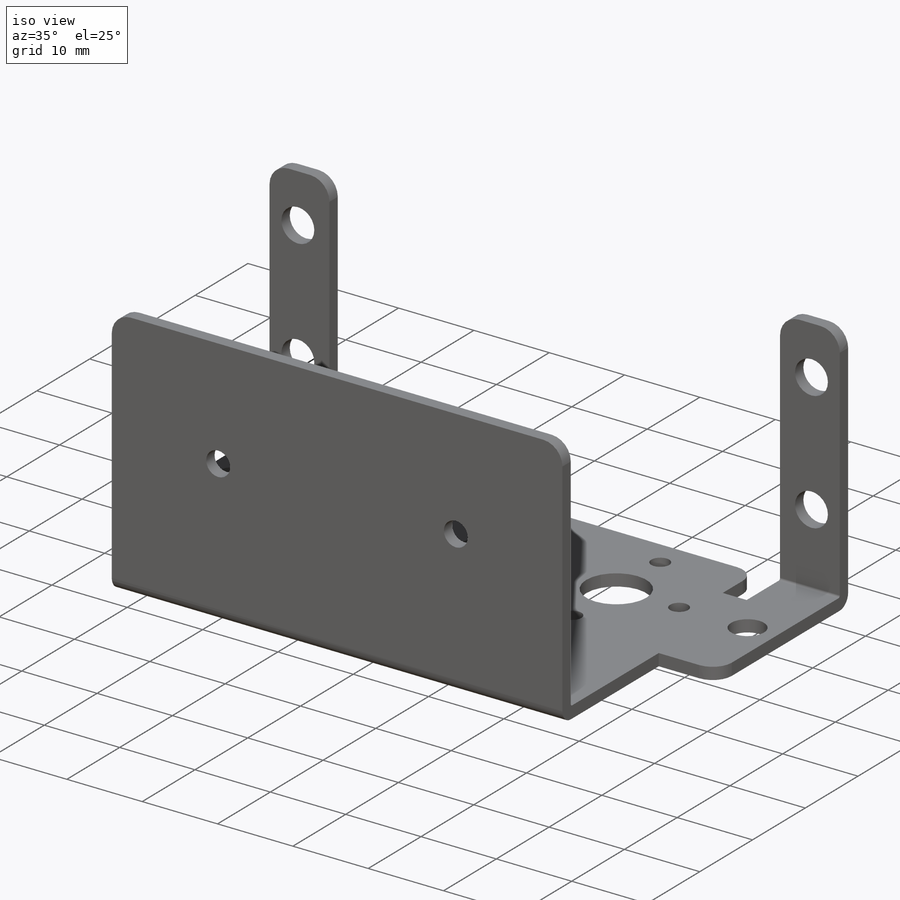
[diagram: iso view]
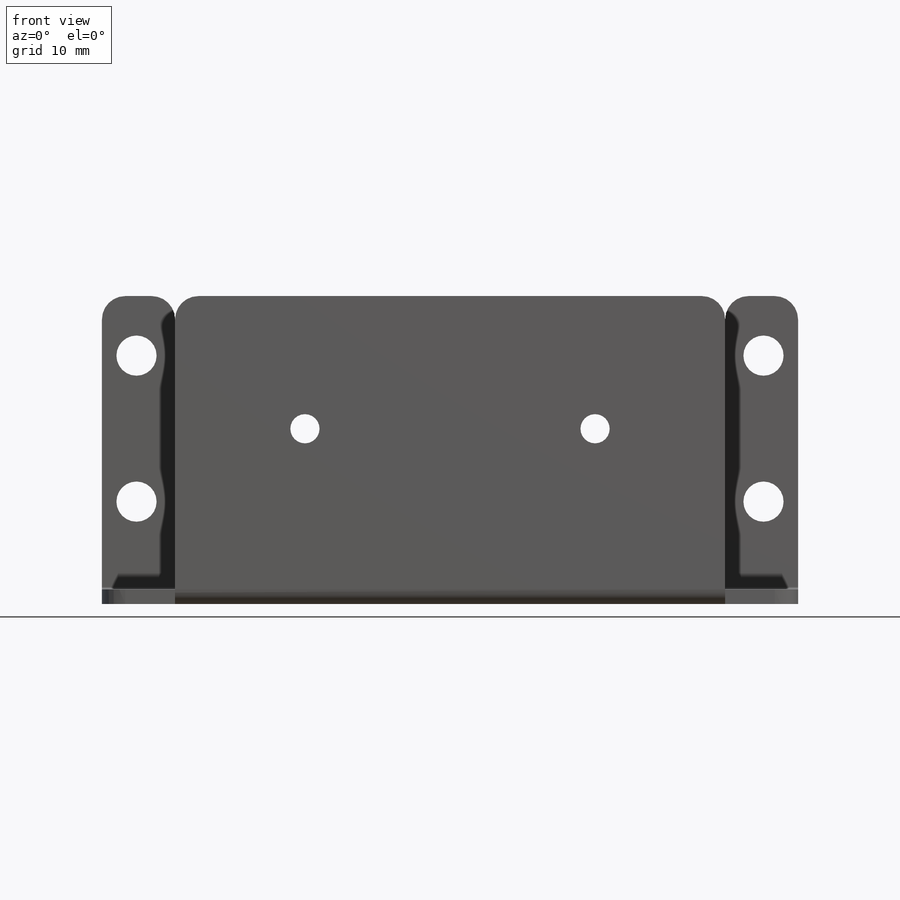
[diagram: front view]
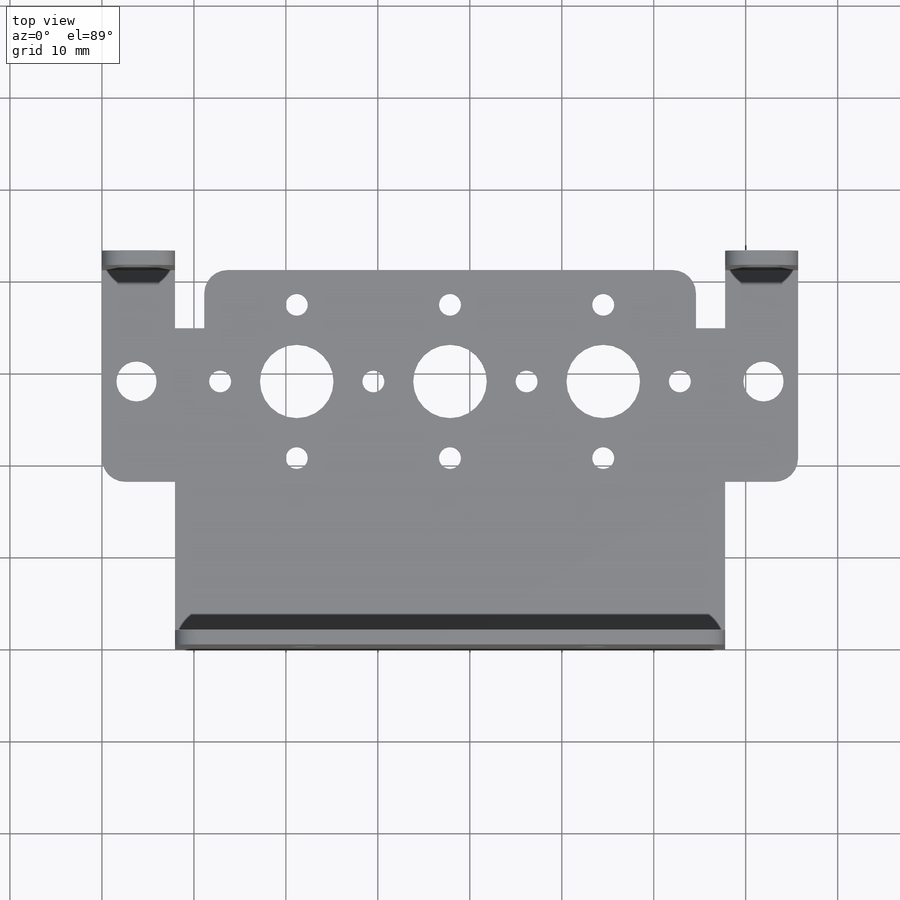
[diagram: top view]
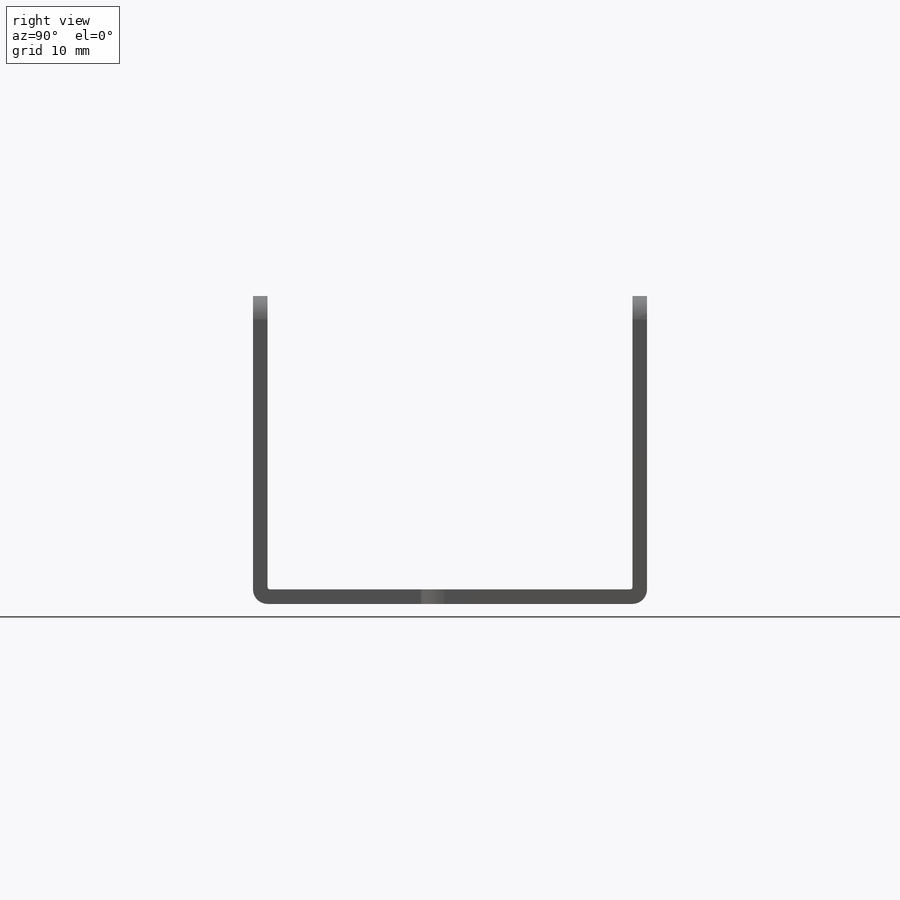
[diagram: right view]
SOLIDWORKS PART (.sldprt)
format: sldprt  version: not decoded by parser v0  size: 378,880 bytes
history: native  units: mm
features: sketch x6, cut_extrude x5, fillet x4, material x1, extrude x1 (+16 scaffold rows collapsed)
feature tree (33):
  scaffold x16  (default folders/planes/origin — collapsed)
  material  "Material <not specified>"
  sketch  "Sketch1"  dims[D6=1.5875mm D1=33.4772mm D2=42.8498mm D3=1.5875mm D4=1.5875mm D5=1.5875mm]
  extrude  "Extrude1"  Depth=75.692mm
  sketch  "Sketch2"  dims[D1=7.9502mm D2=18.2626mm D3=67.7672mm D4=18.2626mm]
  cut_extrude  "Extrude2"  [1 undecoded]
  sketch  "Sketch3"  dims[D1=7.9502mm D2=67.7672mm]
  cut_extrude  "Extrude3"  [1 undecoded]
  sketch  "Sketch4"  dims[D1=34.925mm D2=11.1252mm D3=34.925mm D4=64.5922mm]
  cut_extrude  "Extrude4"  [1 undecoded]
  sketch  "Sketch5"  dims[c1.D1=~2.107176mm c1.D3=16.6624mm c1.D4=2.3876mm c1.D5=8.001mm c1.D6=~1.549179mm c1.D7=4.3688mm c2.D1=29.1592mm c2.D2=21.1836mm c2.D6=3.7592mm c2.D8=71.9328mm]
  cut_extrude  "Extrude5"  [1 undecoded]
  sketch  "Sketch6"  dims[c1.D1=~2.159106mm c1.D5=3.175mm c1.D6=3.175mm c2.D1=11.1252mm c2.D2=27.0002mm c2.D3=3.7592mm c2.D4=71.9328mm c2.D7=19.05mm c2.D8=22.0726mm c2.D9=53.6194mm]
  cut_extrude  "Extrude6"  [1 undecoded]
  fillet  "Fillet1"  Radius=2.54mm
  fillet  "Fillet2"  Radius=0.254mm
  fillet  "Fillet3"  Radius=2.54mm
  fillet  "Fillet4"  Radius=2.54mm
decode coverage: 11 of 16 modeling features carry decoded parameters
note: ~ marks probable driven/reference dimensions
note: 5 parameter values undecoded
summary: no parameter record found for 5 features
note: suppression state not decoded; provenance and decode notes live in map.json
